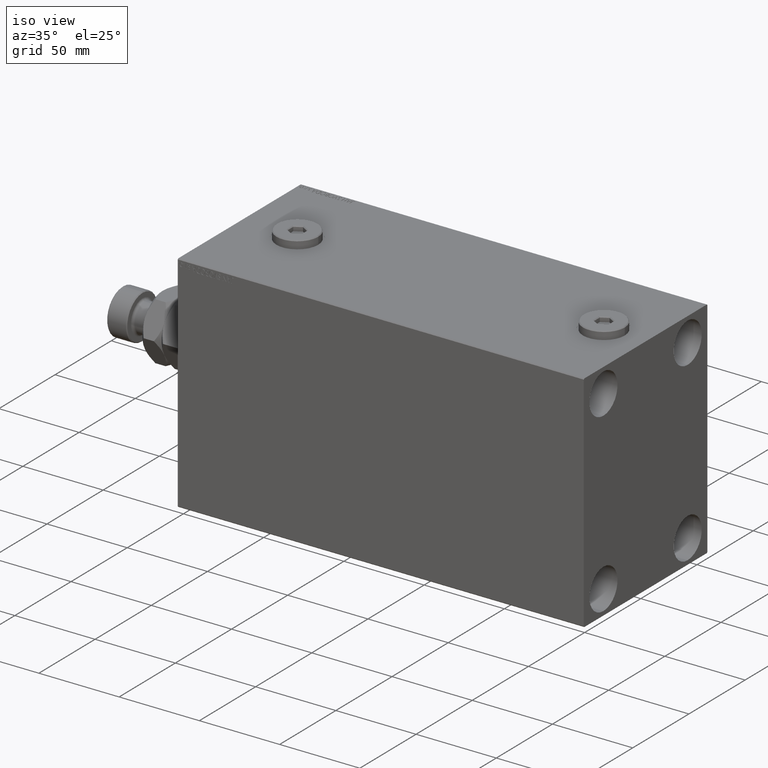
[diagram: clean part render]
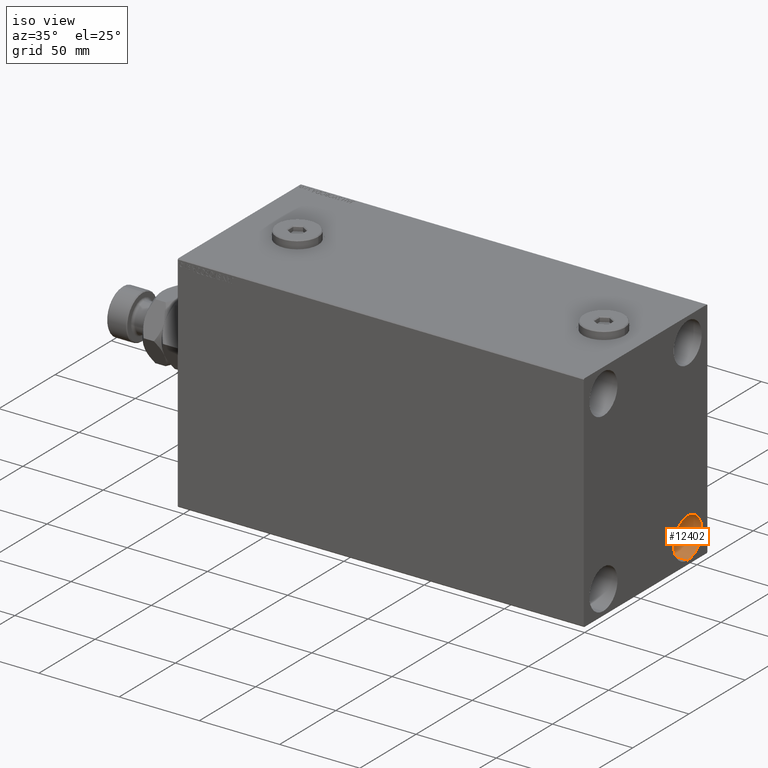
[diagram: same view with one face highlighted and labeled with its STEP entity id]
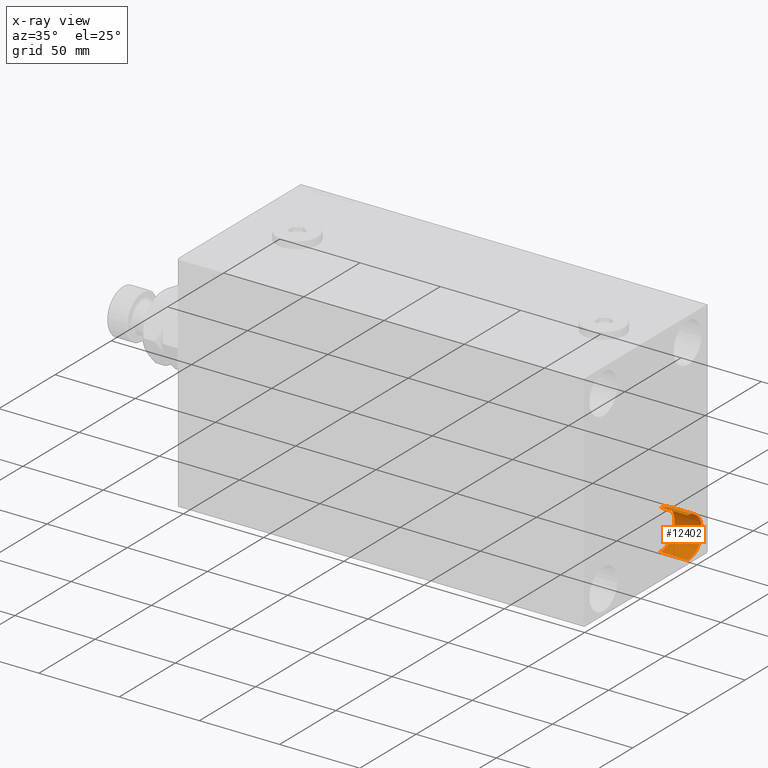
[diagram: x-ray of the same camera — body ghosted, the highlighted face saturated]
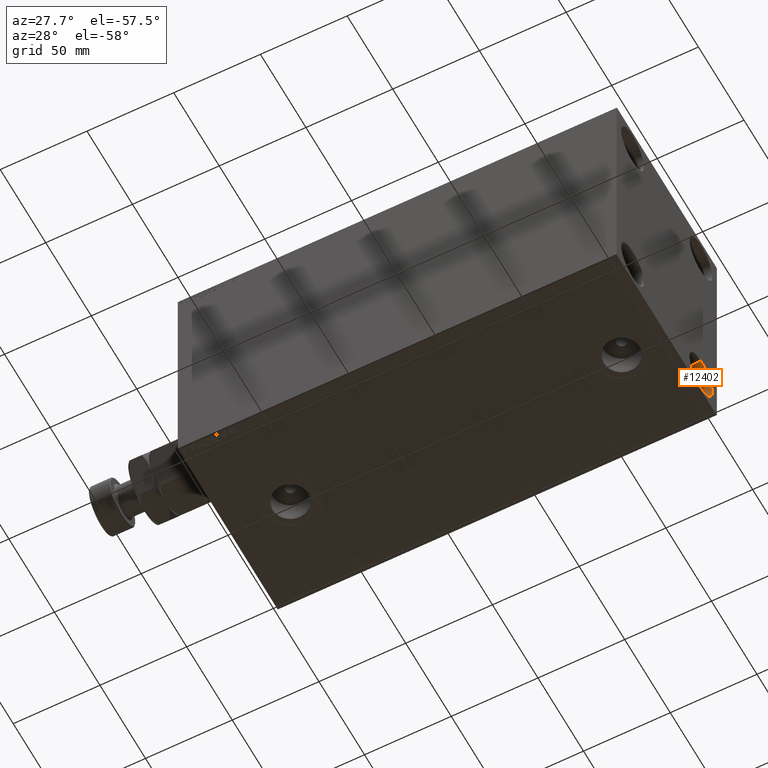
[diagram: same view with one face highlighted and labeled with its STEP entity id]
A machine part, iso view. The second image highlights one B-rep face of the part: STEP entity #12402.
The next image is the same camera in x-ray: the body ghosted, the highlighted face saturated — about 0% of this face is hidden behind the body in this view.
A second angle (auxiliary view) of the same face is appended — the face is thin or edge-on in the first view.
In plain terms, the highlighted cylindrical surface (edge-blend (fillet) strip) has radius 12.5 mm, axis along (1, 0, 0).
Its self-contained STEP definition (entity closure, byte-faithful):
#159 = CARTESIAN_POINT ( 'NONE',  ( 236.0000000000000000, 37.49999999999997868, -42.49999999999999289 ) ) ;
#434 = EDGE_CURVE ( 'NONE', #27866, #21232, #6200, .T. ) ;
#968 = CIRCLE ( 'NONE', #1701, 12.49999999999999645 ) ;
#1701 = AXIS2_PLACEMENT_3D ( 'NONE', #3481, #7519, #32489 ) ;
#2757 = FACE_OUTER_BOUND ( 'NONE', #36901, .T. ) ;
#3456 = EDGE_CURVE ( 'NONE', #6284, #10319, #968, .T. ) ;
#3481 = CARTESIAN_POINT ( 'NONE',  ( 236.0000000000000000, 37.49999999999997868, -54.99999999999999289 ) ) ;
#4473 = DIRECTION ( 'NONE',  ( 1.000000000000000000, -0.000000000000000000, -0.000000000000000000 ) ) ;
#6042 = EDGE_CURVE ( 'NONE', #10319, #21232, #45361, .T. ) ;
#6200 = CIRCLE ( 'NONE', #38865, 12.49999999999999645 ) ;
#6284 = VERTEX_POINT ( 'NONE', #159 ) ;
#7519 = DIRECTION ( 'NONE',  ( -1.000000000000000000, -0.000000000000000000, -0.000000000000000000 ) ) ;
#8041 = CARTESIAN_POINT ( 'NONE',  ( 236.0000000000000000, 37.49999999999997868, -42.49999999999999289 ) ) ;
#8485 = VECTOR ( 'NONE', #19708, 1000.000000000000000 ) ;
#8498 = LINE ( 'NONE', #8041, #39012 ) ;
#9424 = CARTESIAN_POINT ( 'NONE',  ( 236.0000000000000000, 37.49999999999997868, -54.99999999999999289 ) ) ;
#10319 = VERTEX_POINT ( 'NONE', #42994 ) ;
#12402 = ADVANCED_FACE ( 'NONE', ( #2757 ), #17289, .F. ) ;
#12452 = DIRECTION ( 'NONE',  ( -1.000000000000000000, -0.000000000000000000, -0.000000000000000000 ) ) ;
#12799 = CARTESIAN_POINT ( 'NONE',  ( 236.0000000000000000, 37.49999999999997868, -67.49999999999998579 ) ) ;
#17289 = CYLINDRICAL_SURFACE ( 'NONE', #24633, 12.49999999999999645 ) ;
#19420 = EDGE_CURVE ( 'NONE', #6284, #27866, #8498, .T. ) ;
#19708 = DIRECTION ( 'NONE',  ( 1.000000000000000000, -0.000000000000000000, -0.000000000000000000 ) ) ;
#21232 = VERTEX_POINT ( 'NONE', #25990 ) ;
#21945 = ORIENTED_EDGE ( 'NONE', *, *, #19420, .F. ) ;
#22477 = DIRECTION ( 'NONE',  ( 0.000000000000000000, 0.000000000000000000, 1.000000000000000000 ) ) ;
#24633 = AXIS2_PLACEMENT_3D ( 'NONE', #9424, #28200, #42714 ) ;
#25433 = ORIENTED_EDGE ( 'NONE', *, *, #3456, .T. ) ;
#25990 = CARTESIAN_POINT ( 'NONE',  ( 253.0000000000000000, 37.49999999999997868, -67.49999999999998579 ) ) ;
#27866 = VERTEX_POINT ( 'NONE', #45431 ) ;
#28200 = DIRECTION ( 'NONE',  ( 1.000000000000000000, -0.000000000000000000, -0.000000000000000000 ) ) ;
#32489 = DIRECTION ( 'NONE',  ( 0.000000000000000000, 0.000000000000000000, 1.000000000000000000 ) ) ;
#36596 = ORIENTED_EDGE ( 'NONE', *, *, #434, .F. ) ;
#36901 = EDGE_LOOP ( 'NONE', ( #21945, #25433, #46189, #36596 ) ) ;
#38865 = AXIS2_PLACEMENT_3D ( 'NONE', #43391, #12452, #22477 ) ;
#39012 = VECTOR ( 'NONE', #4473, 1000.000000000000000 ) ;
#42714 = DIRECTION ( 'NONE',  ( 0.000000000000000000, 0.000000000000000000, -1.000000000000000000 ) ) ;
#42994 = CARTESIAN_POINT ( 'NONE',  ( 236.0000000000000000, 37.49999999999997868, -67.49999999999998579 ) ) ;
#43391 = CARTESIAN_POINT ( 'NONE',  ( 253.0000000000000000, 37.49999999999997868, -54.99999999999999289 ) ) ;
#45361 = LINE ( 'NONE', #12799, #8485 ) ;
#45431 = CARTESIAN_POINT ( 'NONE',  ( 253.0000000000000000, 37.49999999999997868, -42.49999999999999289 ) ) ;
#46189 = ORIENTED_EDGE ( 'NONE', *, *, #6042, .T. ) ;